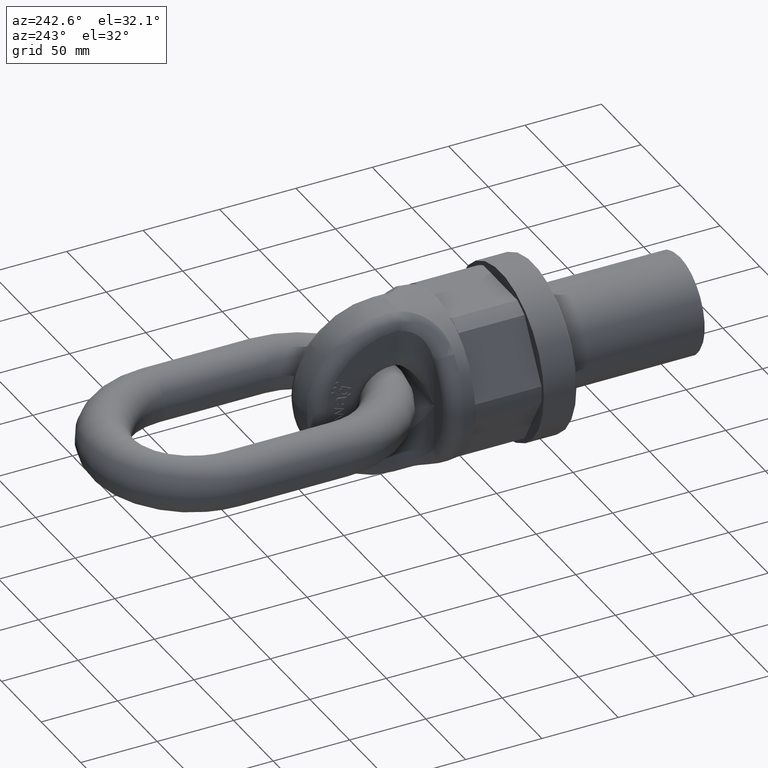
[diagram: clean part render]
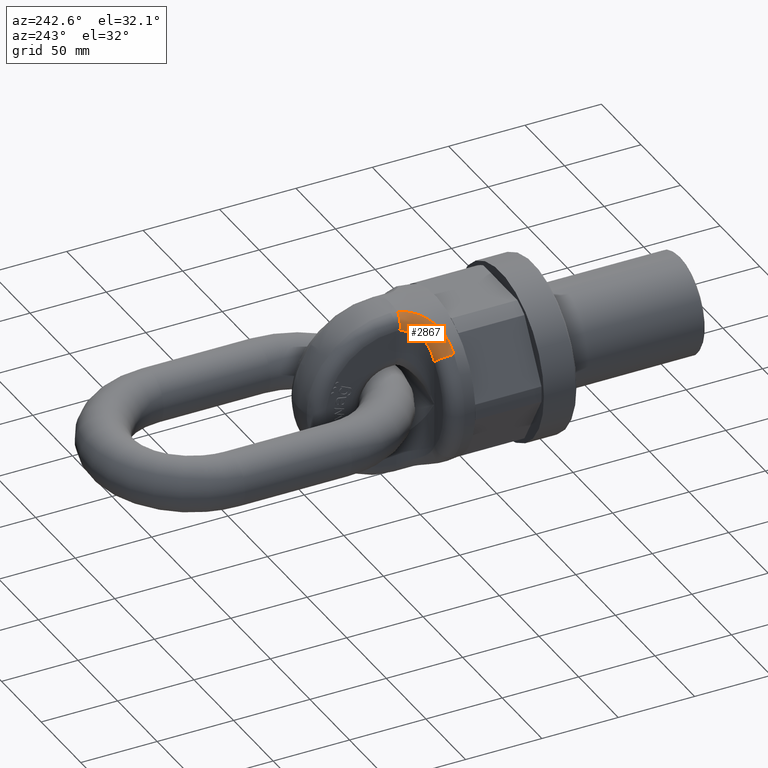
[diagram: same view with one face highlighted and labeled with its STEP entity id]
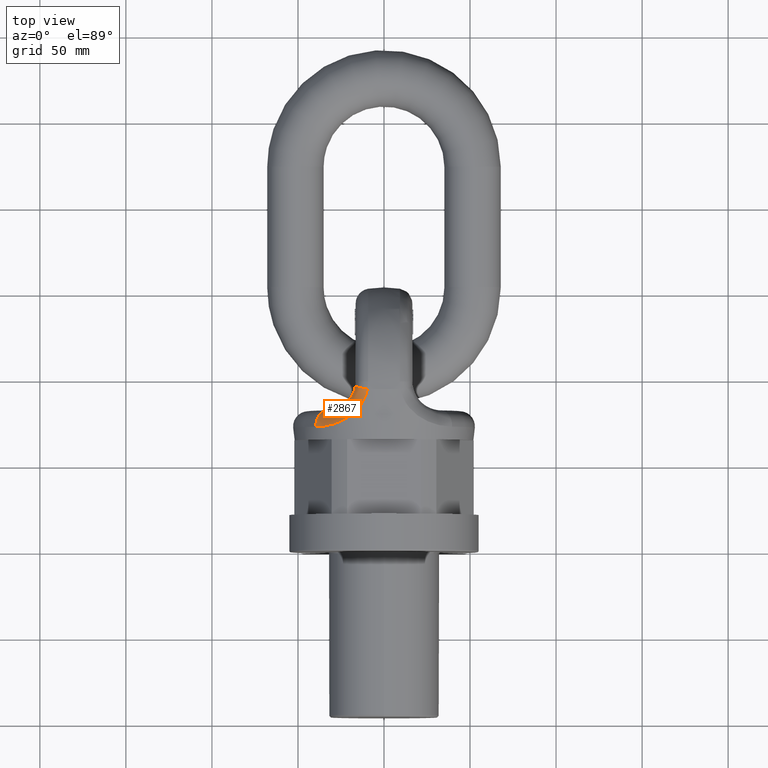
[diagram: same view with one face highlighted and labeled with its STEP entity id]
A machine part, auxiliary view. The second image highlights one B-rep face of the part: STEP entity #2867.
A second angle (top view) of the same face is appended — the face is thin or edge-on in the first view.
In plain terms, the highlighted face is a freeform B-spline surface patch.
Its self-contained STEP definition (entity closure, byte-faithful):
#209=(
BOUNDED_SURFACE()
B_SPLINE_SURFACE(3,2,((#9636,#9637,#9638),(#9639,#9640,#9641),(#9642,#9643,
#9644),(#9645,#9646,#9647),(#9648,#9649,#9650),(#9651,#9652,#9653),(#9654,
#9655,#9656),(#9657,#9658,#9659),(#9660,#9661,#9662),(#9663,#9664,#9665),
(#9666,#9667,#9668),(#9669,#9670,#9671)),.UNSPECIFIED.,.F.,.F.,.F.)
B_SPLINE_SURFACE_WITH_KNOTS((4,2,2,2,2,4),(3,3),(0.,0.25,0.5,0.625,0.75,
1.),(0.,1.),.UNSPECIFIED.)
GEOMETRIC_REPRESENTATION_ITEM()
RATIONAL_B_SPLINE_SURFACE(((1.,0.673958891528948,1.),(1.,0.698569173244655,
1.),(1.,0.719523575230944,1.),(1.,0.750598148131716,1.),(1.,0.759808848132882,
1.),(1.,0.765571649220119,1.),(1.,0.76618857962545,1.),(1.,0.765922049155432,
1.),(1.,0.765022034191473,1.),(1.,0.761986007813849,1.),(1.,0.759638879418057,
1.),(1.,0.76096027957185,1.)))
REPRESENTATION_ITEM('')
SURFACE()
);
#352=B_SPLINE_CURVE_WITH_KNOTS('',3,(#7064,#7065,#7066,#7067,#7068,#7069,
#7070,#7071,#7072,#7073),.UNSPECIFIED.,.F.,.F.,(4,2,2,2,4),(0.,0.25,0.5,
0.75,1.),.UNSPECIFIED.);
#536=B_SPLINE_CURVE_WITH_KNOTS('',3,(#8651,#8652,#8653,#8654,#8655,#8656,
#8657,#8658,#8659,#8660),.UNSPECIFIED.,.F.,.F.,(4,2,2,2,4),(0.,0.25,0.5,
0.75,1.),.UNSPECIFIED.);
#2003=FACE_OUTER_BOUND('',#3326,.T.);
#2867=ADVANCED_FACE('',(#2003),#209,.T.);
#3326=EDGE_LOOP('',(#4493,#4494,#4495,#4496));
#4493=ORIENTED_EDGE('',*,*,#5517,.F.);
#4494=ORIENTED_EDGE('',*,*,#5341,.F.);
#4495=ORIENTED_EDGE('',*,*,#5518,.F.);
#4496=ORIENTED_EDGE('',*,*,#5065,.F.);
#4652=VERTEX_POINT('',#7063);
#4653=VERTEX_POINT('',#7074);
#4833=VERTEX_POINT('',#8650);
#4834=VERTEX_POINT('',#8661);
#5065=EDGE_CURVE('',#4652,#4653,#352,.T.);
#5341=EDGE_CURVE('',#4833,#4834,#536,.T.);
#5517=EDGE_CURVE('',#4834,#4652,#5583,.T.);
#5518=EDGE_CURVE('',#4653,#4833,#5584,.T.);
#5583=CIRCLE('',#5782,8.75);
#5584=CIRCLE('',#5783,8.75);
#5782=AXIS2_PLACEMENT_3D('',#9634,#6523,#6524);
#5783=AXIS2_PLACEMENT_3D('',#9635,#6525,#6526);
#6523=DIRECTION('',(0.146876638936786,0.98212669786944,0.117704724912392));
#6524=DIRECTION('',(0.989001605901432,-0.147904778571855,2.37904933848248E-15));
#6525=DIRECTION('',(-0.662930101454878,2.28856183412548E-16,-0.748681294400378));
#6526=DIRECTION('',(-0.748681294400378,0.,0.662930101454878));
#7063=CARTESIAN_POINT('',(-9.54646529306795,93.9642646218021,53.9305698987969));
#7064=CARTESIAN_POINT('',(-9.54646529306795,93.9642646218019,53.9305698987968));
#7065=CARTESIAN_POINT('',(-10.2215715076206,90.2318136566987,53.462551232091));
#7066=CARTESIAN_POINT('',(-11.8752128018628,86.7947747479395,52.8461870570573));
#7067=CARTESIAN_POINT('',(-16.4114244867928,81.0034264033429,51.0594113295399));
#7068=CARTESIAN_POINT('',(-19.2284416047268,78.7012720395915,49.8957504268851));
#7069=CARTESIAN_POINT('',(-25.2375917917683,75.2248761672735,46.7800140701432));
#7070=CARTESIAN_POINT('',(-28.3252540747576,74.0985357389962,44.8822813849155));
#7071=CARTESIAN_POINT('',(-34.247425483846,72.7037388002105,40.3768538930966));
#7072=CARTESIAN_POINT('',(-37.0068475720059,72.4488602807412,37.8386994931718));
#7073=CARTESIAN_POINT('',(-39.5234451226101,72.4488602807412,34.9965755535043));
#7074=CARTESIAN_POINT('',(-39.5234451226101,72.4488602807413,34.9965755535043));
#8650=CARTESIAN_POINT('',(-33.0000000000001,82.,29.2203017647611));
#8651=CARTESIAN_POINT('',(-33.0000000000001,82.,29.2203017647611));
#8652=CARTESIAN_POINT('',(-31.7604835005406,82.,31.3624967265596));
#8653=CARTESIAN_POINT('',(-30.3679904712918,82.1319592399398,33.3802047079644));
#8654=CARTESIAN_POINT('',(-27.2545975093217,82.9490970454346,37.1182415490326));
#8655=CARTESIAN_POINT('',(-25.5517098999721,83.6358633814773,38.7974517914108));
#8656=CARTESIAN_POINT('',(-22.1528898331945,85.9000085770875,41.6080975378234));
#8657=CARTESIAN_POINT('',(-20.5171624757037,87.460123196881,42.6905270538874));
#8658=CARTESIAN_POINT('',(-17.9444334047457,91.3564695715712,44.3382807711403));
#8659=CARTESIAN_POINT('',(-17.0441367392336,93.6345344044536,44.9059501713278));
#8660=CARTESIAN_POINT('',(-16.6814735026265,96.0595711535644,45.3507065058064));
#8661=CARTESIAN_POINT('',(-16.6814735026265,96.0595711535644,45.3507065058064));
#9634=CARTESIAN_POINT('',(-8.02770945098896,94.7654043410607,45.3507065058064));
#9635=CARTESIAN_POINT('',(-33.0000000000001,73.25,29.2203017647611));
#9636=CARTESIAN_POINT('',(-39.5234451226101,72.4488602807413,34.9965755535043));
#9637=CARTESIAN_POINT('',(-40.180921894065,82.,35.5787473615416));
#9638=CARTESIAN_POINT('',(-33.0000000000001,82.,29.2203017647611));
#9639=CARTESIAN_POINT('',(-36.8357250058672,72.448860279503,38.0319570687788));
#9640=CARTESIAN_POINT('',(-37.8667393676848,81.3846526123247,38.1069279859673));
#9641=CARTESIAN_POINT('',(-31.5335865025679,82.,31.7546315671738));
#9642=CARTESIAN_POINT('',(-33.8767308334891,72.7398915002457,40.7131156320042));
#9643=CARTESIAN_POINT('',(-35.323714118405,81.0942786041634,40.4453838259496));
#9644=CARTESIAN_POINT('',(-29.9214328891953,82.1901788173347,33.9961915607023));
#9645=CARTESIAN_POINT('',(-27.5515812665828,74.3420492412669,45.4057693023302));
#9646=CARTESIAN_POINT('',(-30.1696825065125,81.5905629079622,44.5286456339502));
#9647=CARTESIAN_POINT('',(-26.4782866521459,83.2371333795166,37.9355380268515));
#9648=CARTESIAN_POINT('',(-24.3091549259376,75.6403937118693,47.3098458736288));
#9649=CARTESIAN_POINT('',(-27.5945046920255,82.3555841997765,46.2641636628678));
#9650=CARTESIAN_POINT('',(-24.7145052890349,84.0855564997004,39.5436869095953));
#9651=CARTESIAN_POINT('',(-19.8070868726301,78.4600170945703,49.5581326060343));
#9652=CARTESIAN_POINT('',(-24.1918675764803,84.262149642777,48.3675201727568));
#9653=CARTESIAN_POINT('',(-22.2649734204537,85.9280826703473,41.4630096808795));
#9654=CARTESIAN_POINT('',(-18.3996525789309,79.522397702894,50.1934321921138));
#9655=CARTESIAN_POINT('',(-23.149312417416,85.0062695119726,48.9800278242178));
#9656=CARTESIAN_POINT('',(-21.499104518527,86.6223115829276,42.0095521264863));
#9657=CARTESIAN_POINT('',(-15.8065021477683,81.8972136743453,51.2978364587836));
#9658=CARTESIAN_POINT('',(-21.2634774096777,86.6829260876399,50.0677177078703));
#9659=CARTESIAN_POINT('',(-20.0877056530884,88.1741715243987,42.9679248442554));
#9660=CARTESIAN_POINT('',(-14.61061934976,83.2265432787273,51.7705058426661));
#9661=CARTESIAN_POINT('',(-20.4094525655136,87.6302225687979,50.5490446978037));
#9662=CARTESIAN_POINT('',(-19.4366353401235,89.0428423551394,43.3829887824669));
#9663=CARTESIAN_POINT('',(-11.5494093912471,87.4442245842748,52.9686852341363));
#9664=CARTESIAN_POINT('',(-18.2416377014395,90.6252878662289,51.7871971103267));
#9665=CARTESIAN_POINT('',(-17.7698749893259,91.7989509309824,44.4481673105175));
#9666=CARTESIAN_POINT('',(-10.1529974141825,90.6109383595754,53.5100903529801));
#9667=CARTESIAN_POINT('',(-17.2819044483346,92.8420460426639,52.3649998467111));
#9668=CARTESIAN_POINT('',(-17.0092297783234,93.8679483666707,44.9487587346288));
#9669=CARTESIAN_POINT('',(-9.54646529306792,93.9642646218021,53.9305698987969));
#9670=CARTESIAN_POINT('',(-16.8113504233418,95.1911172442503,52.7591402491911));
#9671=CARTESIAN_POINT('',(-16.6814735026265,96.0595711535645,45.3507065058064));